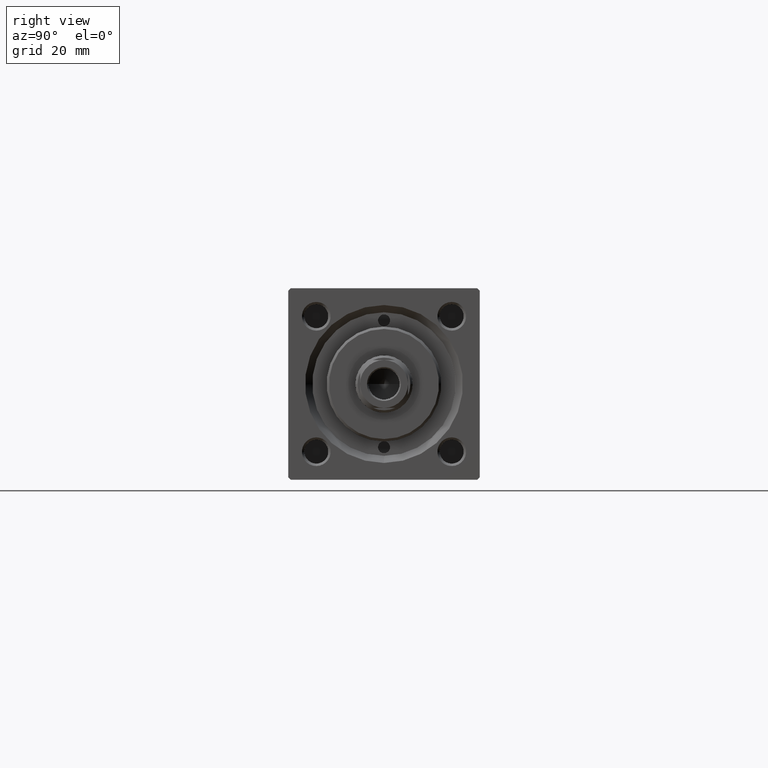
[diagram: clean part render]
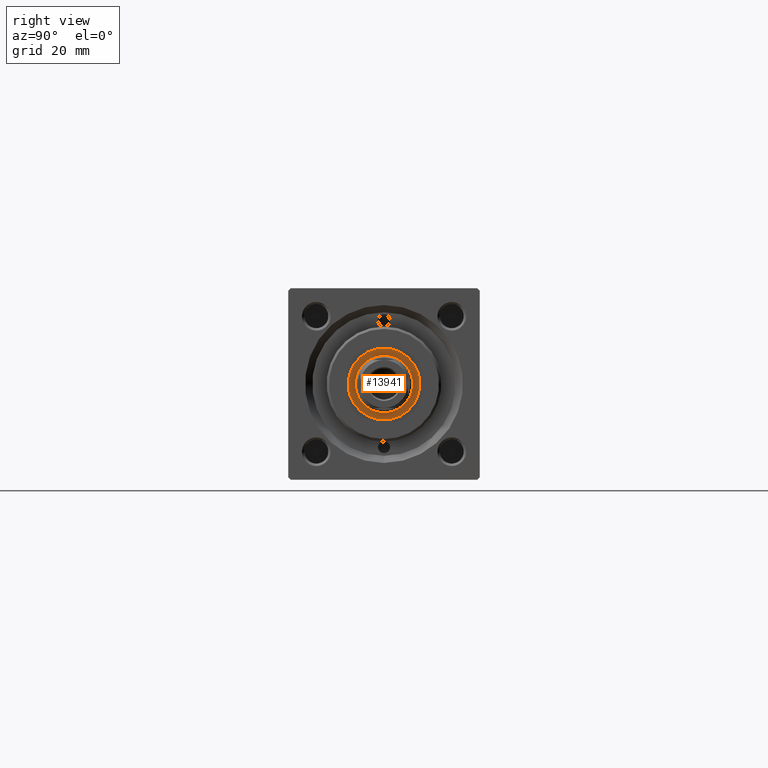
[diagram: same view with one face highlighted and labeled with its STEP entity id]
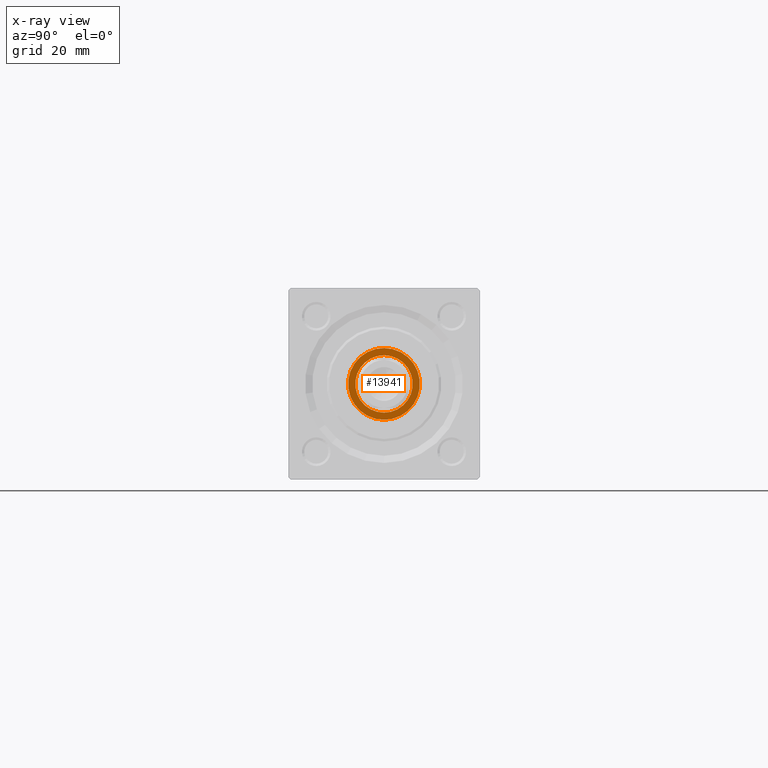
[diagram: x-ray of the same camera — body ghosted, the highlighted face saturated]
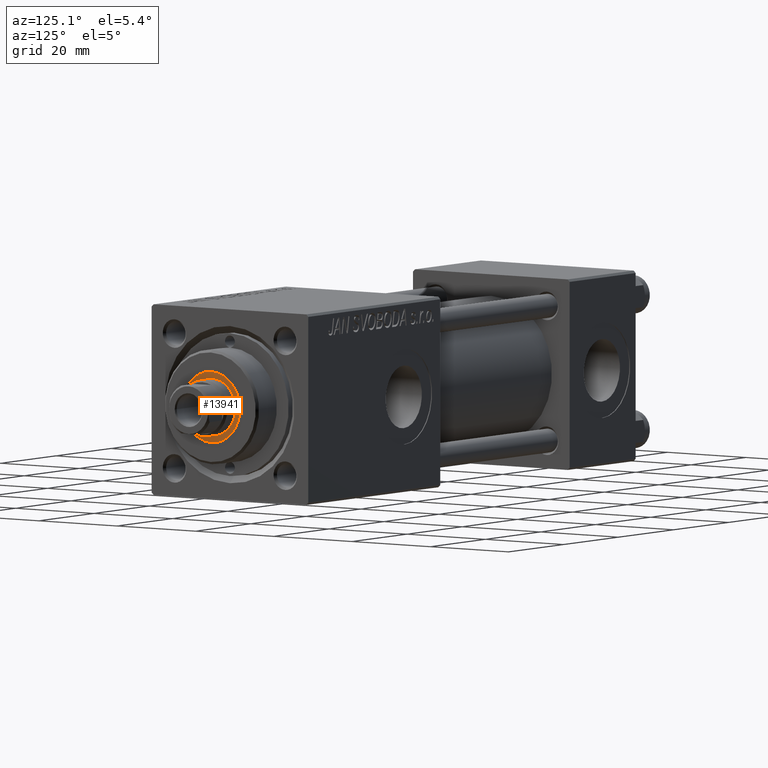
[diagram: same view with one face highlighted and labeled with its STEP entity id]
A machine part, right view. The second image highlights one B-rep face of the part: STEP entity #13941.
The next image is the same camera in x-ray: the body ghosted, the highlighted face saturated — about 0% of this face is hidden behind the body in this view.
A second angle (auxiliary view) of the same face is appended — the face is thin or edge-on in the first view.
In plain terms, the highlighted planar face has unit normal (1, 0, 0).
Its self-contained STEP definition (entity closure, byte-faithful):
#3163 = EDGE_LOOP ( 'NONE', ( #6229, #6467 ) ) ;
#4156 = CARTESIAN_POINT ( 'NONE',  ( -6.000000000000000888, 7.347880794884119736E-16, 35.20000000000000284 ) ) ;
#5962 = AXIS2_PLACEMENT_3D ( 'NONE', #10193, #21911, #21401 ) ;
#5993 = CARTESIAN_POINT ( 'NONE',  ( -7.500000000000000888, 9.184850993605149917E-16, 35.20000000000000284 ) ) ;
#6229 = ORIENTED_EDGE ( 'NONE', *, *, #32766, .T. ) ;
#6467 = ORIENTED_EDGE ( 'NONE', *, *, #29040, .T. ) ;
#7459 = CIRCLE ( 'NONE', #8252, 7.500000000000000888 ) ;
#8252 = AXIS2_PLACEMENT_3D ( 'NONE', #17772, #18280, #10649 ) ;
#9677 = CARTESIAN_POINT ( 'NONE',  ( 0.000000000000000000, 0.000000000000000000, 35.20000000000000284 ) ) ;
#9851 = ORIENTED_EDGE ( 'NONE', *, *, #35790, .T. ) ;
#10193 = CARTESIAN_POINT ( 'NONE',  ( 0.000000000000000000, 0.000000000000000000, 35.20000000000000284 ) ) ;
#10649 = DIRECTION ( 'NONE',  ( 1.000000000000000000, 0.000000000000000000, 0.000000000000000000 ) ) ;
#11457 = VERTEX_POINT ( 'NONE', #5993 ) ;
#13941 = ADVANCED_FACE ( 'NONE', ( #30090, #26027 ), #34403, .T. ) ;
#14565 = DIRECTION ( 'NONE',  ( 1.000000000000000000, 0.000000000000000000, -0.000000000000000000 ) ) ;
#16328 = AXIS2_PLACEMENT_3D ( 'NONE', #21249, #36750, #36257 ) ;
#17772 = CARTESIAN_POINT ( 'NONE',  ( 0.000000000000000000, 0.000000000000000000, 35.20000000000000284 ) ) ;
#18280 = DIRECTION ( 'NONE',  ( 0.000000000000000000, 0.000000000000000000, 1.000000000000000000 ) ) ;
#20215 = EDGE_CURVE ( 'NONE', #30846, #32575, #39096, .T. ) ;
#21249 = CARTESIAN_POINT ( 'NONE',  ( 0.000000000000000000, 0.000000000000000000, 35.20000000000000284 ) ) ;
#21401 = DIRECTION ( 'NONE',  ( 1.000000000000000000, 0.000000000000000000, 0.000000000000000000 ) ) ;
#21911 = DIRECTION ( 'NONE',  ( 0.000000000000000000, 0.000000000000000000, 1.000000000000000000 ) ) ;
#26027 = FACE_BOUND ( 'NONE', #47618, .T. ) ;
#27032 = CARTESIAN_POINT ( 'NONE',  ( 0.000000000000000000, 0.000000000000000000, 35.20000000000000284 ) ) ;
#29040 = EDGE_CURVE ( 'NONE', #11457, #30672, #7459, .T. ) ;
#30090 = FACE_OUTER_BOUND ( 'NONE', #3163, .T. ) ;
#30672 = VERTEX_POINT ( 'NONE', #46376 ) ;
#30834 = DIRECTION ( 'NONE',  ( 0.000000000000000000, 0.000000000000000000, 1.000000000000000000 ) ) ;
#30846 = VERTEX_POINT ( 'NONE', #31875 ) ;
#31255 = CIRCLE ( 'NONE', #37740, 6.000000000000000888 ) ;
#31875 = CARTESIAN_POINT ( 'NONE',  ( 6.000000000000000888, 0.000000000000000000, 35.20000000000000284 ) ) ;
#32575 = VERTEX_POINT ( 'NONE', #4156 ) ;
#32766 = EDGE_CURVE ( 'NONE', #30672, #11457, #40055, .T. ) ;
#34403 = PLANE ( 'NONE',  #34917 ) ;
#34917 = AXIS2_PLACEMENT_3D ( 'NONE', #27032, #30834, #14565 ) ;
#35790 = EDGE_CURVE ( 'NONE', #32575, #30846, #31255, .T. ) ;
#36257 = DIRECTION ( 'NONE',  ( 1.000000000000000000, 0.000000000000000000, 0.000000000000000000 ) ) ;
#36750 = DIRECTION ( 'NONE',  ( -0.000000000000000000, -0.000000000000000000, -1.000000000000000000 ) ) ;
#37740 = AXIS2_PLACEMENT_3D ( 'NONE', #9677, #44771, #44510 ) ;
#39096 = CIRCLE ( 'NONE', #16328, 6.000000000000000888 ) ;
#40055 = CIRCLE ( 'NONE', #5962, 7.500000000000000888 ) ;
#42037 = ORIENTED_EDGE ( 'NONE', *, *, #20215, .T. ) ;
#44510 = DIRECTION ( 'NONE',  ( 1.000000000000000000, 0.000000000000000000, 0.000000000000000000 ) ) ;
#44771 = DIRECTION ( 'NONE',  ( -0.000000000000000000, -0.000000000000000000, -1.000000000000000000 ) ) ;
#46376 = CARTESIAN_POINT ( 'NONE',  ( 7.500000000000000888, 0.000000000000000000, 35.20000000000000284 ) ) ;
#47618 = EDGE_LOOP ( 'NONE', ( #42037, #9851 ) ) ;